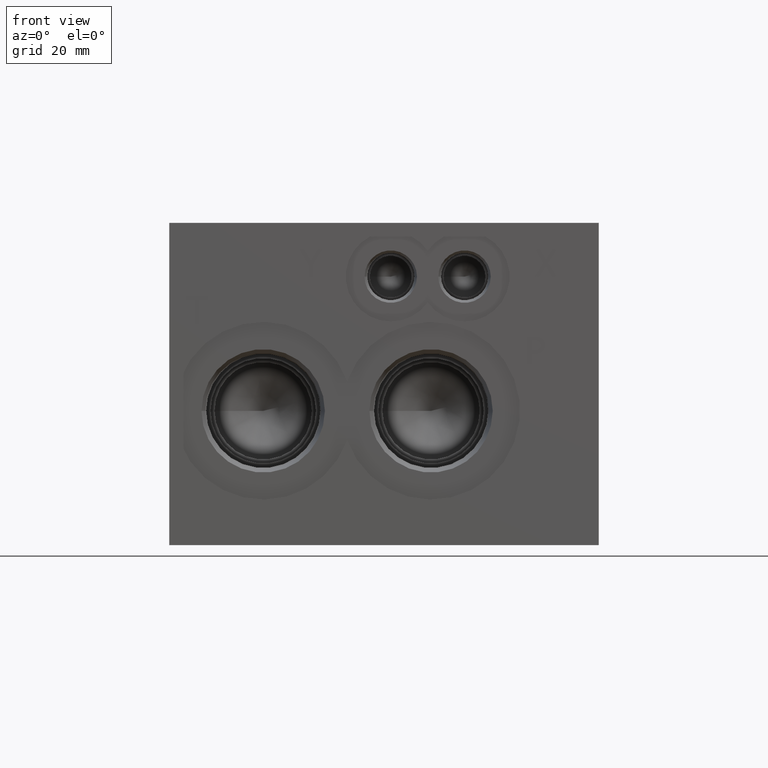
[diagram: clean part render]
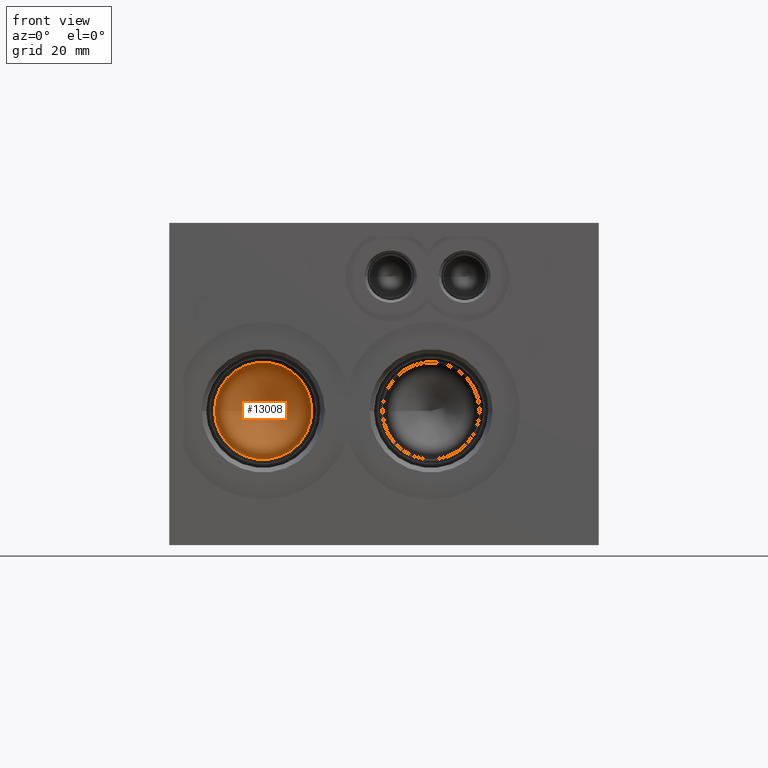
[diagram: same view with one face highlighted and labeled with its STEP entity id]
A machine part, front view. The second image highlights one B-rep face of the part: STEP entity #13008.
In plain terms, the highlighted conical surface has half-angle 60 deg.
Its self-contained STEP definition (entity closure, byte-faithful):
#113=CONICAL_SURFACE('',#13651,5.7531,1.0471975511966);
#253=CIRCLE('',#13652,11.5062);
#254=CIRCLE('',#13653,11.5062);
#1478=FACE_OUTER_BOUND('',#2204,.T.);
#2204=EDGE_LOOP('',(#11239,#11240,#11241,#11242));
#3500=LINE('',#21907,#4736);
#4736=VECTOR('',#16133,5.7531);
#6168=VERTEX_POINT('',#21903);
#6169=VERTEX_POINT('',#21904);
#6170=VERTEX_POINT('',#21906);
#7916=EDGE_CURVE('',#6168,#6169,#253,.T.);
#7917=EDGE_CURVE('',#6169,#6170,#3500,.T.);
#7918=EDGE_CURVE('',#6169,#6168,#254,.T.);
#11239=ORIENTED_EDGE('',*,*,#7916,.T.);
#11240=ORIENTED_EDGE('',*,*,#7917,.T.);
#11241=ORIENTED_EDGE('',*,*,#7917,.F.);
#11242=ORIENTED_EDGE('',*,*,#7918,.T.);
#13008=ADVANCED_FACE('',(#1478),#113,.F.);
#13651=AXIS2_PLACEMENT_3D('',#21902,#16129,#16130);
#13652=AXIS2_PLACEMENT_3D('',#21905,#16131,#16132);
#13653=AXIS2_PLACEMENT_3D('',#21908,#16134,#16135);
#16129=DIRECTION('center_axis',(0.,-1.,0.));
#16130=DIRECTION('ref_axis',(1.,0.,0.));
#16131=DIRECTION('center_axis',(0.,-1.,0.));
#16132=DIRECTION('ref_axis',(1.,0.,0.));
#16133=DIRECTION('',(0.866025403784439,0.5,1.06057523872491E-16));
#16134=DIRECTION('center_axis',(0.,-1.,0.));
#16135=DIRECTION('ref_axis',(1.,0.,0.));
#21902=CARTESIAN_POINT('Origin',(22.225,34.1885438336748,31.75));
#21903=CARTESIAN_POINT('',(33.7312,30.86699,31.75));
#21904=CARTESIAN_POINT('',(10.7188,30.86699,31.75));
#21905=CARTESIAN_POINT('Origin',(22.225,30.86699,31.75));
#21906=CARTESIAN_POINT('',(22.225,37.5100976673497,31.75));
#21907=CARTESIAN_POINT('',(16.4719,34.1885438336748,31.75));
#21908=CARTESIAN_POINT('Origin',(22.225,30.86699,31.75));